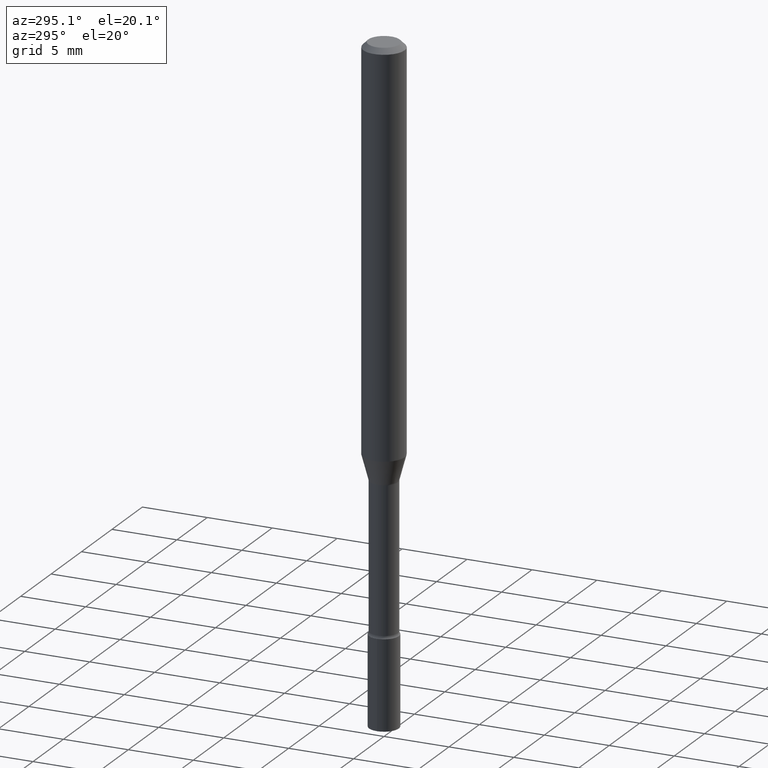
[diagram: clean part render]
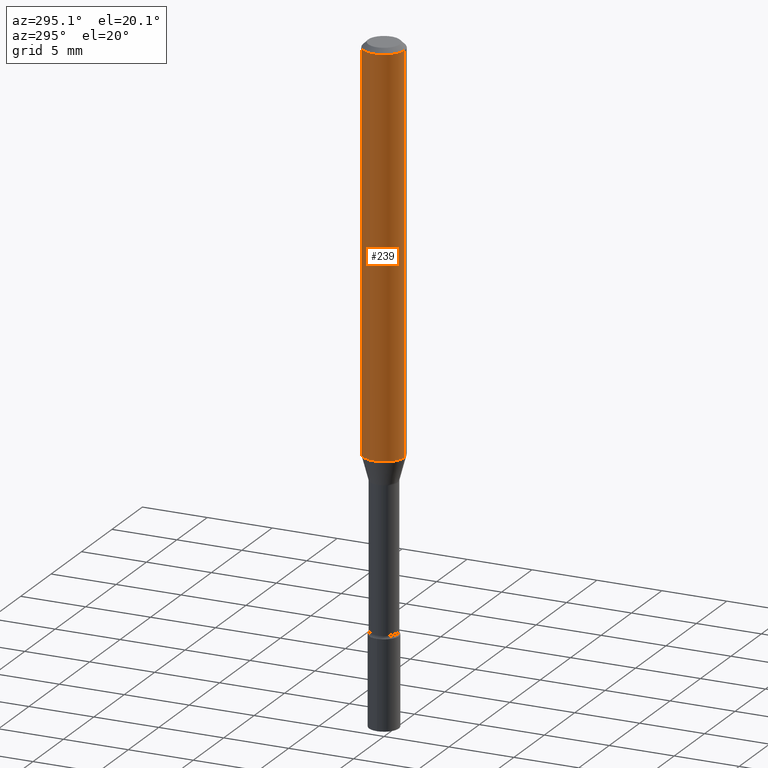
[diagram: same view with one face highlighted and labeled with its STEP entity id]
A machine part, auxiliary view. The second image highlights one B-rep face of the part: STEP entity #239.
In plain terms, the highlighted cylindrical surface (edge-blend (fillet) strip) has radius 1.5875 mm, axis along (-0, 0, 1).
Its self-contained STEP definition (entity closure, byte-faithful):
#7 = CARTESIAN_POINT ( 'NONE',  ( 4.440892098500921985E-16, 0.06249999999999582279, -1.204612573687109167 ) ) ;
#11 = ORIENTED_EDGE ( 'NONE', *, *, #72, .F. ) ;
#31 = CARTESIAN_POINT ( 'NONE',  ( -4.364351673553619392E-16, -0.06250000000000417721, -1.204612573687108723 ) ) ;
#34 = LINE ( 'NONE', #324, #341 ) ;
#37 = DIRECTION ( 'NONE',  ( -2.445564497008087352E-29, 3.491344304138296135E-15, 1.000000000000000000 ) ) ;
#45 = CARTESIAN_POINT ( 'NONE',  ( -4.364351673553912750E-16, -0.06250000000000005551, -0.01499999999999981209 ) ) ;
#47 = VERTEX_POINT ( 'NONE', #31 ) ;
#62 = FACE_OUTER_BOUND ( 'NONE', #89, .T. ) ;
#66 = CIRCLE ( 'NONE', #404, 0.06250000000000000000 ) ;
#72 = EDGE_CURVE ( 'NONE', #153, #309, #240, .T. ) ;
#89 = EDGE_LOOP ( 'NONE', ( #115, #133, #343, #11 ) ) ;
#115 = ORIENTED_EDGE ( 'NONE', *, *, #290, .F. ) ;
#133 = ORIENTED_EDGE ( 'NONE', *, *, #207, .T. ) ;
#144 = VERTEX_POINT ( 'NONE', #7 ) ;
#149 = DIRECTION ( 'NONE',  ( -6.982962677686265922E-15, -1.000000000000000000, 3.491344304138296530E-15 ) ) ;
#153 = VERTEX_POINT ( 'NONE', #170 ) ;
#155 = DIRECTION ( 'NONE',  ( -6.982962677686265922E-15, -1.000000000000000000, 3.483106191921935554E-15 ) ) ;
#167 = VECTOR ( 'NONE', #37, 39.37007874015748143 ) ;
#170 = CARTESIAN_POINT ( 'NONE',  ( 4.440892098500922971E-16, 0.06249999999999995143, -0.01500000000000024751 ) ) ;
#183 = DIRECTION ( 'NONE',  ( -6.982962677686265922E-15, -1.000000000000000000, 4.370956789862821150E-15 ) ) ;
#200 = CARTESIAN_POINT ( 'NONE',  ( 2.945957742858732346E-29, -4.205717247835861609E-15, -1.204612573687108945 ) ) ;
#207 = EDGE_CURVE ( 'NONE', #144, #47, #66, .T. ) ;
#239 = ADVANCED_FACE ( 'NONE', ( #62 ), #428, .T. ) ;
#240 = CIRCLE ( 'NONE', #249, 0.06250000000000000000 ) ;
#243 = LINE ( 'NONE', #474, #167 ) ;
#249 = AXIS2_PLACEMENT_3D ( 'NONE', #276, #513, #155 ) ;
#276 = CARTESIAN_POINT ( 'NONE',  ( 3.668346745512138210E-31, -5.237016456207455099E-17, -0.01500000000000003067 ) ) ;
#290 = EDGE_CURVE ( 'NONE', #144, #153, #34, .T. ) ;
#309 = VERTEX_POINT ( 'NONE', #45 ) ;
#324 = CARTESIAN_POINT ( 'NONE',  ( 4.440892098500625669E-16, 0.06250000000000000000, -2.182090190086435331E-16 ) ) ;
#341 = VECTOR ( 'NONE', #518, 39.37007874015748143 ) ;
#343 = ORIENTED_EDGE ( 'NONE', *, *, #425, .T. ) ;
#351 = AXIS2_PLACEMENT_3D ( 'NONE', #465, #386, #149 ) ;
#356 = DIRECTION ( 'NONE',  ( -2.445564497008087352E-29, 3.491344304138296530E-15, 1.000000000000000000 ) ) ;
#386 = DIRECTION ( 'NONE',  ( -2.445564497008087352E-29, 3.491344304138296530E-15, 1.000000000000000000 ) ) ;
#404 = AXIS2_PLACEMENT_3D ( 'NONE', #200, #356, #183 ) ;
#425 = EDGE_CURVE ( 'NONE', #47, #309, #243, .T. ) ;
#428 = CYLINDRICAL_SURFACE ( 'NONE', #351, 0.06250000000000000000 ) ;
#465 = CARTESIAN_POINT ( 'NONE',  ( 0.000000000000000000, 0.000000000000000000, 0.000000000000000000 ) ) ;
#474 = CARTESIAN_POINT ( 'NONE',  ( -4.364351673553916201E-16, -0.06250000000000000000, 2.182090190086435331E-16 ) ) ;
#513 = DIRECTION ( 'NONE',  ( -2.445564497008087352E-29, 3.491344304138296530E-15, 1.000000000000000000 ) ) ;
#518 = DIRECTION ( 'NONE',  ( -2.445564497008087352E-29, 3.491344304138296135E-15, 1.000000000000000000 ) ) ;